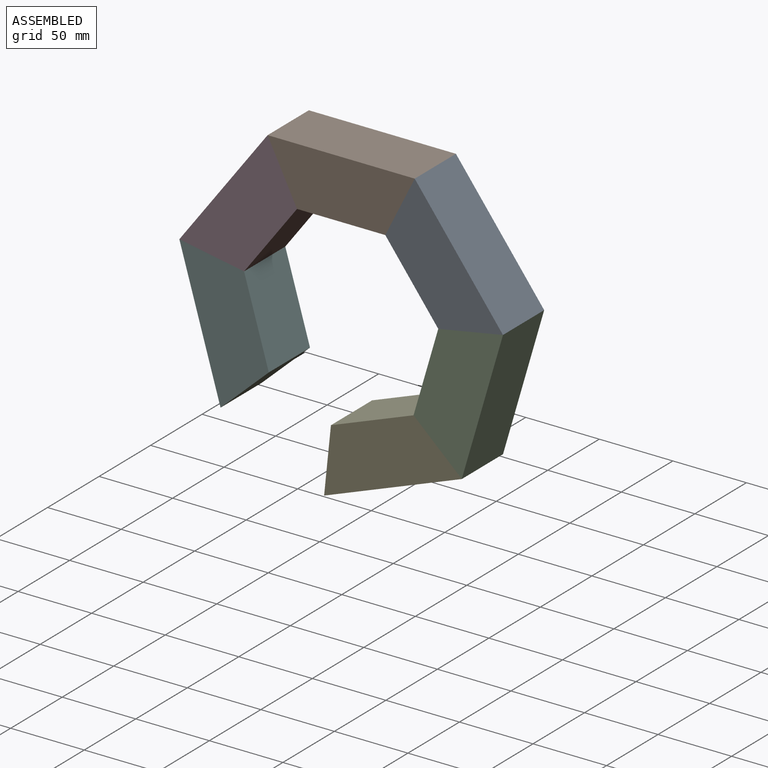
[diagram: assembled view]
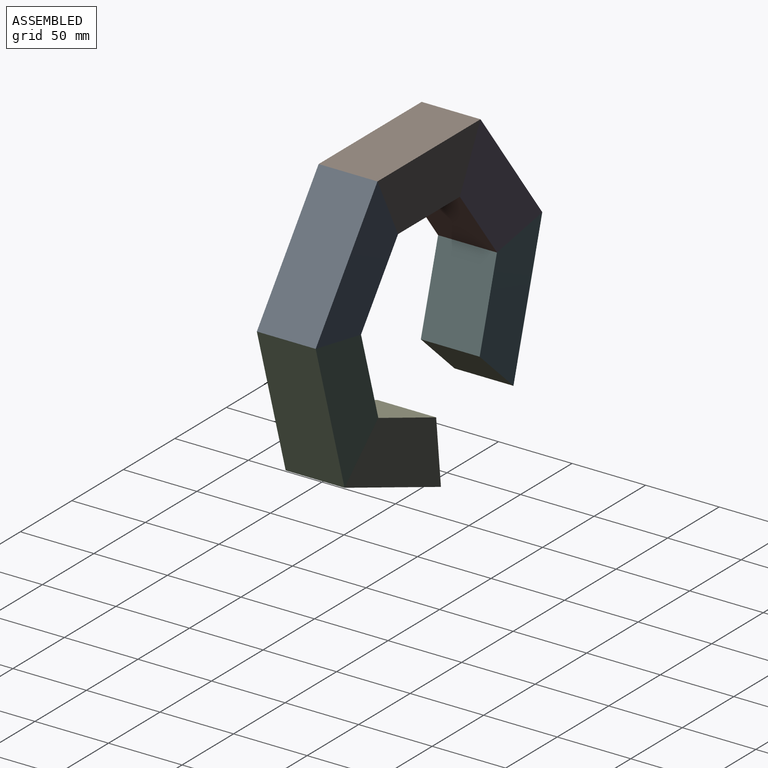
[diagram: assembled view, second angle]
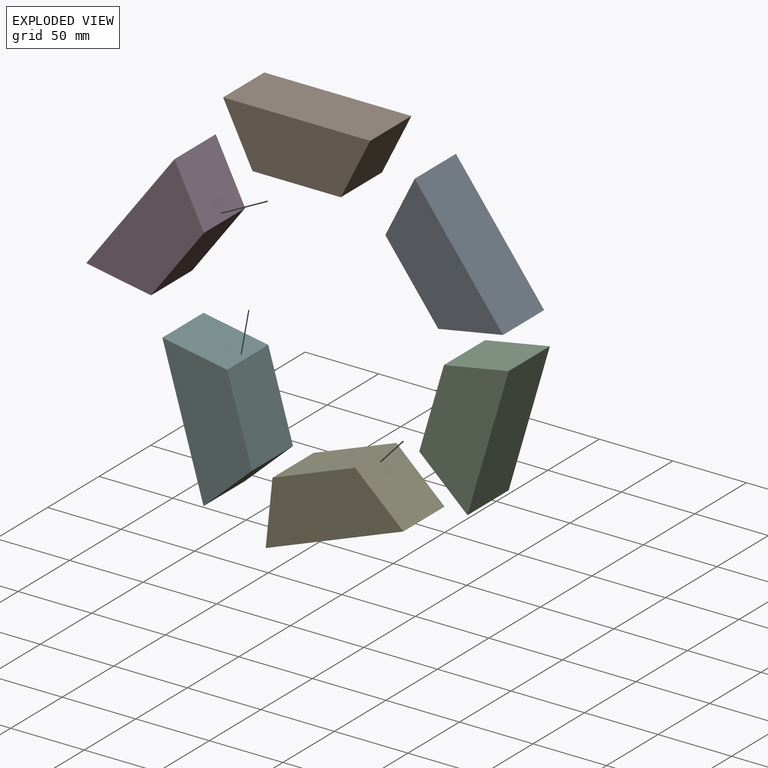
[diagram: exploded view]
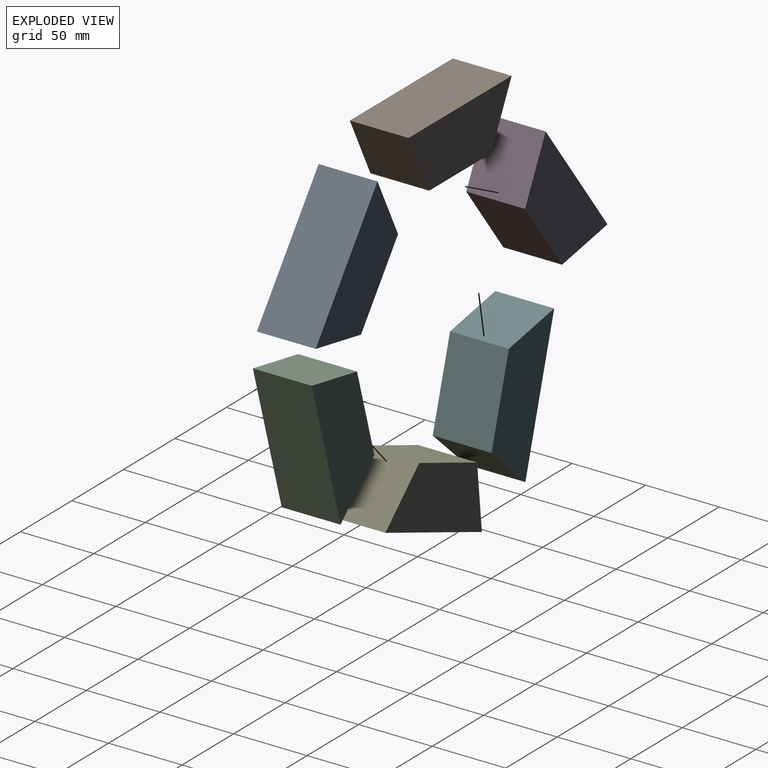
[diagram: exploded view, second angle]
ASSEMBLY  parts=6 mates=5
PART A: 6 faces, bbox 100x40x40 mm
  f0: plane 40x40mm, normal (-0.89,0,-0.45), area 1788.9mm2, adj f1,f3,f4,f5
  f1: plane 60x40mm, normal (0,0,-1), area 2400mm2, adj f0,f2,f4,f5
  f2: plane 40x40mm, normal (0.89,0,-0.45), area 1788.9mm2, adj f1,f3,f4,f5
  f3: plane 100x40mm, normal (0,0,1), area 4000mm2, adj f0,f2,f4,f5
  f4: plane 100x40mm, normal (0,-1,0), area 3200mm2, adj f0,f1,f2,f3
  f5: plane 100x40mm, normal (0,1,0), area 3200mm2, adj f0,f1,f2,f3
PART B: same geometry as A
PART C: same geometry as A
PART D: same geometry as A
PART E: same geometry as A
PART F: same geometry as A
PLACE A rot(axis=(0,1,0),53.1deg) t=(44.41,24.61,-154.93)mm
PLACE B t=(1.43,24.61,-127.4)mm
PLACE C rot(axis=(0.8,0,0.6),180deg) t=(51.56,-15.39,-194.25)mm
PLACE D rot(axis=(-0.45,0,0.89),180deg) t=(-53.64,-15.39,-154.93)mm
PLACE E rot(axis=(0.98,0,0.18),180deg) t=(21.02,-15.39,-235.15)mm
PLACE F rot(axis=(0,-1,0),106.3deg) t=(-60.79,24.61,-194.25)mm
MATE fastened B.f2 <-> A.f0  axis (0.89,0,-0.45) through (45.39,4.61,-84.15)mm
MATE fastened F.f2 <-> D.f2  axis (0.18,0,0.98) through (-114.61,4.61,-164.15)mm
MATE fastened C.f2 <-> A.f2  axis (-0.18,0,0.98) through (105.39,4.61,-164.15)mm
MATE fastened C.f0 <-> E.f2  axis (-0.68,0,-0.73) through (77.39,4.61,-260.15)mm
MATE fastened B.f0 <-> D.f0  axis (-0.89,0,-0.45) through (-54.61,4.61,-84.15)mm
